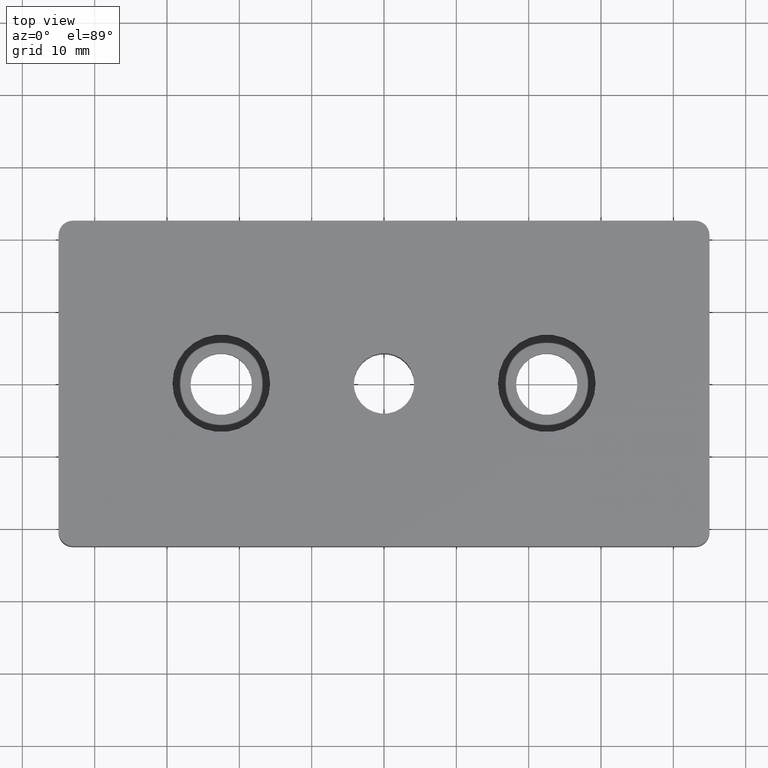
[diagram: clean part render]
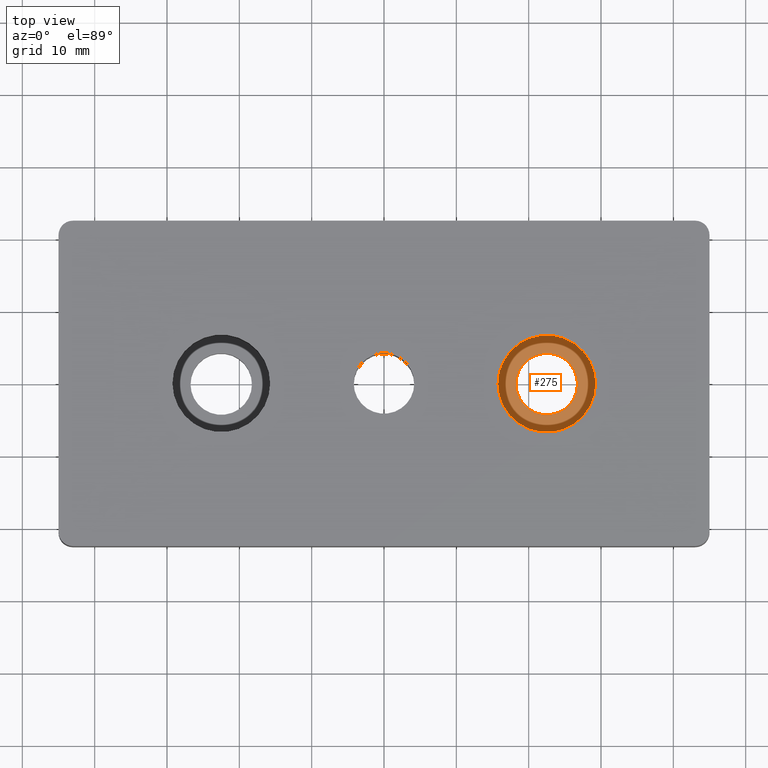
[diagram: same view with one face highlighted and labeled with its STEP entity id]
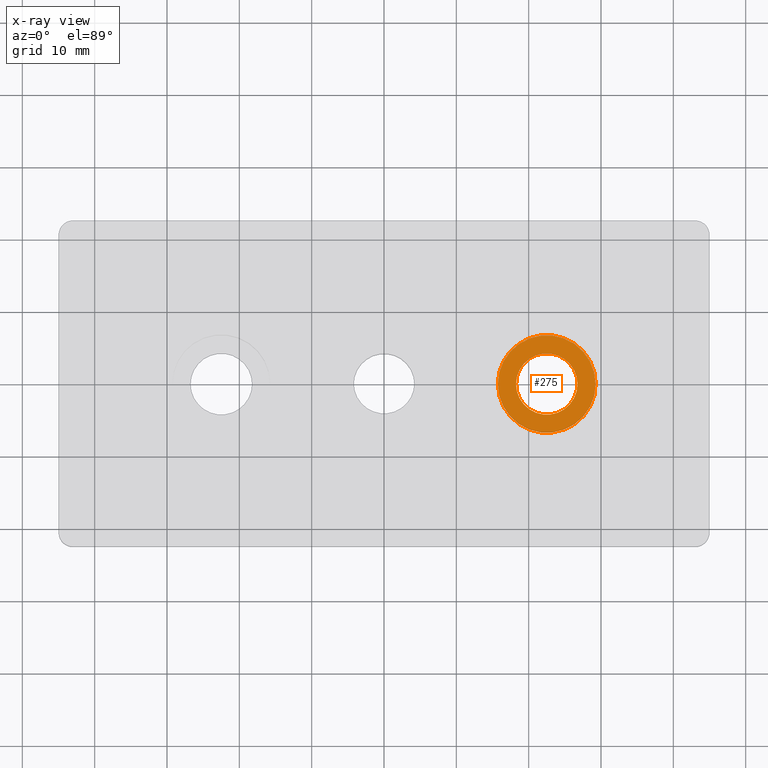
[diagram: x-ray of the same camera — body ghosted, the highlighted face saturated]
A machine part, top view. The second image highlights one B-rep face of the part: STEP entity #275.
The next image is the same camera in x-ray: the body ghosted, the highlighted face saturated — about 0% of this face is hidden behind the body in this view.
In plain terms, the highlighted planar face has unit normal (0, 0, 1).
Its self-contained STEP definition (entity closure, byte-faithful):
#49=PLANE('',#300);
#60=FACE_BOUND('',#95,.T.);
#73=FACE_OUTER_BOUND('',#94,.T.);
#94=EDGE_LOOP('',(#202));
#95=EDGE_LOOP('',(#203));
#122=CIRCLE('',#301,6.75);
#123=CIRCLE('',#302,4.25);
#140=VERTEX_POINT('',#431);
#141=VERTEX_POINT('',#433);
#166=EDGE_CURVE('',#140,#140,#122,.T.);
#167=EDGE_CURVE('',#141,#141,#123,.T.);
#202=ORIENTED_EDGE('',*,*,#166,.T.);
#203=ORIENTED_EDGE('',*,*,#167,.F.);
#275=ADVANCED_FACE('',(#73,#60),#49,.T.);
#300=AXIS2_PLACEMENT_3D('',#430,#347,#348);
#301=AXIS2_PLACEMENT_3D('',#432,#349,#350);
#302=AXIS2_PLACEMENT_3D('',#434,#351,#352);
#347=DIRECTION('center_axis',(0.,0.,1.));
#348=DIRECTION('ref_axis',(1.,0.,0.));
#349=DIRECTION('center_axis',(0.,0.,1.));
#350=DIRECTION('ref_axis',(1.,0.,0.));
#351=DIRECTION('center_axis',(0.,0.,1.));
#352=DIRECTION('ref_axis',(1.,0.,0.));
#430=CARTESIAN_POINT('Origin',(22.5,0.,4.5));
#431=CARTESIAN_POINT('',(29.25,0.,4.5));
#432=CARTESIAN_POINT('Origin',(22.5,0.,4.5));
#433=CARTESIAN_POINT('',(18.25,-5.20474889637625E-16,4.5));
#434=CARTESIAN_POINT('Origin',(22.5,0.,4.5));